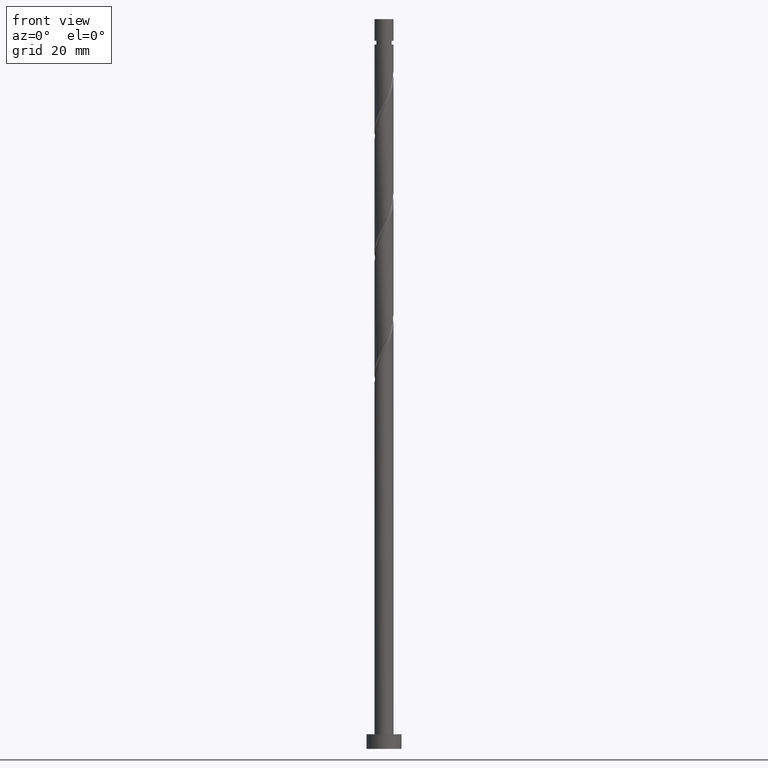
[diagram: clean part render]
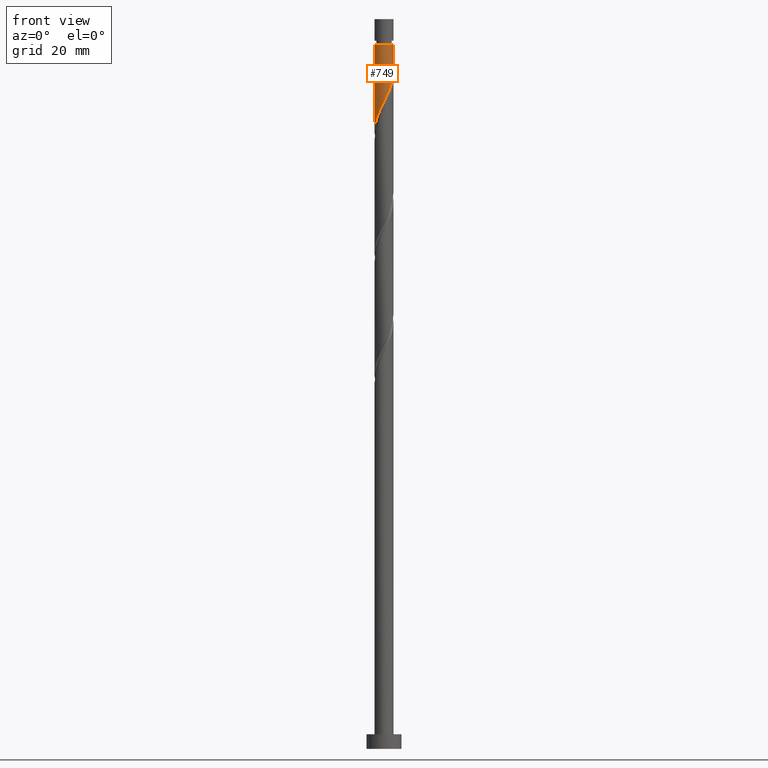
[diagram: same view with one face highlighted and labeled with its STEP entity id]
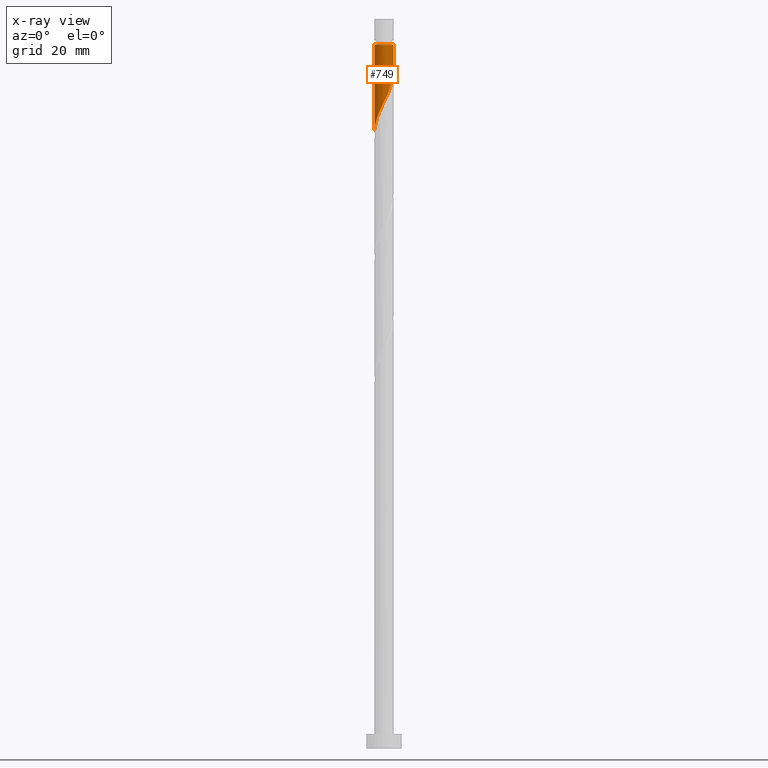
[diagram: x-ray of the same camera — body ghosted, the highlighted face saturated]
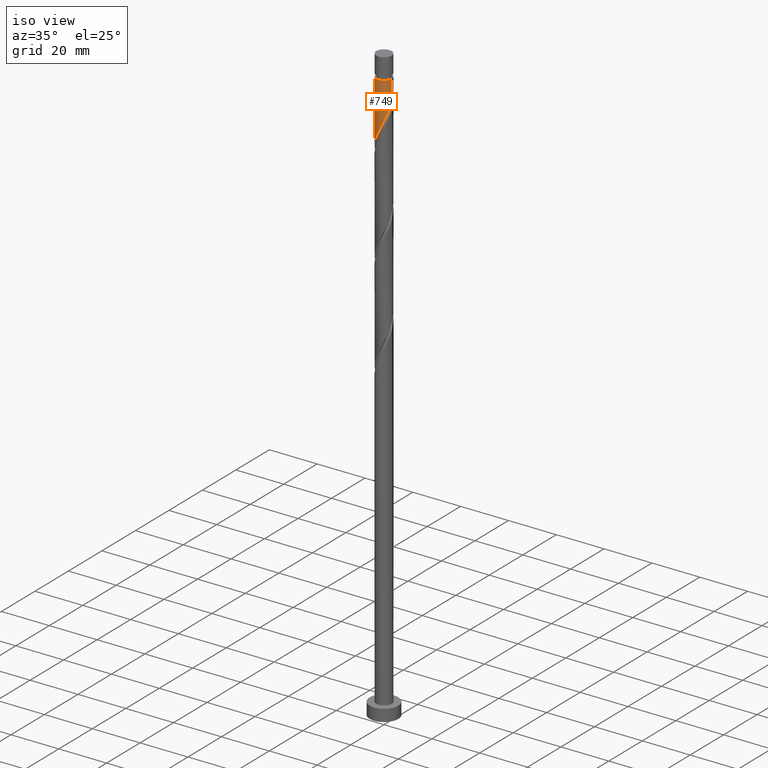
[diagram: same view with one face highlighted and labeled with its STEP entity id]
A machine part, front view. The second image highlights one B-rep face of the part: STEP entity #749.
The next image is the same camera in x-ray: the body ghosted, the highlighted face saturated — about 0% of this face is hidden behind the body in this view.
A second angle (iso view) of the same face is appended — the face is thin or edge-on in the first view.
In plain terms, the highlighted cylindrical surface (edge-blend (fillet) strip) has radius 3.25 mm, axis along (-0, -0, -1).
Its self-contained STEP definition (entity closure, byte-faithful):
#14 = CARTESIAN_POINT ( 'NONE',  ( -3.250000000000000444, 5.099975039850755207E-15, 211.3477605159716290 ) ) ;
#22 =( BOUNDED_CURVE ( )  B_SPLINE_CURVE ( 2, ( #521, #831, #530, #1241, #1383, #1086, #954, #1507, #693, #389, #1806, #1812, #419, #249, #800, #1246, #549, #378, #1079, #1659, #1350, #405, #818, #105, #677, #970, #1223, #1115, #944 ),
 .UNSPECIFIED., .F., .T. ) 
 B_SPLINE_CURVE_WITH_KNOTS ( ( 3, 2, 2, 2, 2, 2, 2, 2, 2, 2, 2, 2, 2, 2, 3 ),
 ( 0.3045271625973832164, 0.3076923076923077094, 0.3173076923076922906, 0.3269230769230769273, 0.3365384615384615641, 0.3461538461538461453, 0.3557692307692307820, 0.3653846153846153633, 0.3750000000000000000, 0.3846153846153846367, 0.3942307692307692180, 0.4038461538461538547, 0.4134615384615384359, 0.4230769230769230727, 0.4295271625973831608 ),
 .UNSPECIFIED. ) 
 CURVE ( )  GEOMETRIC_REPRESENTATION_ITEM ( )  RATIONAL_B_SPLINE_CURVE ( ( 0.9061636035682838486, 0.9069090390690724979, 0.9090909090909291557, 0.9024626128164325856, 0.9090909090909291557, 0.9024626128164325856, 0.9090909090909291557, 0.9024626128164325856, 0.9090909090909291557, 0.9024626128164325856, 0.9090909090909291557, 0.9024626128164325856, 0.9090909090909291557, 0.9024626128164325856, 0.9090909090909291557, 0.9024626128164325856, 0.9090909090909291557, 0.9024626128164325856, 0.9090909090909291557, 0.9024626128164325856, 0.9090909090909291557, 0.9024626128164325856, 0.9090909090909291557, 0.9024626128164325856, 0.9090909090909291557, 0.9024626128164325856, 0.9090909090909291557, 0.9046444828382892434, 0.9061636035682838486 ) ) 
 REPRESENTATION_ITEM ( '' )  );
#64 = ORIENTED_EDGE ( 'NONE', *, *, #1703, .F. ) ;
#81 = EDGE_CURVE ( 'NONE', #933, #1470, #22, .T. ) ;
#105 = CARTESIAN_POINT ( 'NONE',  ( -2.833535561689598303, -1.639909237082070037, 214.8275309477720612 ) ) ;
#127 = DIRECTION ( 'NONE',  ( -1.000000000000000000, 0.000000000000000000, 0.000000000000000000 ) ) ;
#150 = EDGE_LOOP ( 'NONE', ( #64, #223, #504, #1832 ) ) ;
#223 = ORIENTED_EDGE ( 'NONE', *, *, #1363, .T. ) ;
#249 = CARTESIAN_POINT ( 'NONE',  ( 0.5285562154176340899, -3.230921604182013240, 222.8403514605925579 ) ) ;
#280 = FACE_OUTER_BOUND ( 'NONE', #150, .T. ) ;
#378 = CARTESIAN_POINT ( 'NONE',  ( -1.033470850682206121, -3.106471323868430723, 219.6352232554643251 ) ) ;
#389 = CARTESIAN_POINT ( 'NONE',  ( 1.969497422358206684, -2.615206681803766031, 226.0454796657207339 ) ) ;
#405 = CARTESIAN_POINT ( 'NONE',  ( -2.358742199564649145, -2.270365900294399886, 216.4300950503361491 ) ) ;
#419 = CARTESIAN_POINT ( 'NONE',  ( 0.9074818488964547791, -3.120733358350800568, 223.6416335118746304 ) ) ;
#464 = LINE ( 'NONE', #1802, #1435 ) ;
#485 = LINE ( 'NONE', #1330, #743 ) ;
#504 = ORIENTED_EDGE ( 'NONE', *, *, #1777, .T. ) ;
#521 = CARTESIAN_POINT ( 'NONE',  ( 3.249999999999999556, 2.557465489192020800E-15, 232.1810938493049719 ) ) ;
#530 = CARTESIAN_POINT ( 'NONE',  ( 3.239733877669281448, -0.2581170313674841510, 231.6544540246951271 ) ) ;
#549 = CARTESIAN_POINT ( 'NONE',  ( -0.6467418341193054143, -3.184999999999998721, 220.4365053067464260 ) ) ;
#677 = CARTESIAN_POINT ( 'NONE',  ( -2.988594849070721704, -1.277028123460070885, 214.0262488964900456 ) ) ;
#693 = CARTESIAN_POINT ( 'NONE',  ( 2.253812376671868289, -2.341544313217390094, 226.8467617170028348 ) ) ;
#715 = VERTEX_POINT ( 'NONE', #1531 ) ;
#743 = VECTOR ( 'NONE', #1032, 1000.000000000000000 ) ;
#749 = ADVANCED_FACE ( 'NONE', ( #280 ), #837, .T. ) ;
#800 = CARTESIAN_POINT ( 'NONE',  ( 0.1342716989306140807, -3.247225140156789536, 222.0390694093104571 ) ) ;
#818 = CARTESIAN_POINT ( 'NONE',  ( -2.596138880627123946, -1.955137568688234628, 215.6288129990541051 ) ) ;
#831 = CARTESIAN_POINT ( 'NONE',  ( 3.250000000000000000, -0.1292626735944972793, 231.9169229336719980 ) ) ;
#837 = CYLINDRICAL_SURFACE ( 'NONE', #1701, 3.250000000000000444 ) ;
#857 = CARTESIAN_POINT ( 'NONE',  ( 0.000000000000000000, 0.000000000000000000, 250.0000000000000000 ) ) ;
#891 = DIRECTION ( 'NONE',  ( -0.000000000000000000, -0.000000000000000000, -1.000000000000000000 ) ) ;
#933 = VERTEX_POINT ( 'NONE', #1067 ) ;
#944 = CARTESIAN_POINT ( 'NONE',  ( -3.250000000000000444, 5.099975039850754418E-15, 211.3477605159716290 ) ) ;
#954 = CARTESIAN_POINT ( 'NONE',  ( 2.748688917919486663, -1.734130684956182833, 228.4493258195668943 ) ) ;
#970 = CARTESIAN_POINT ( 'NONE',  ( -3.143654136451845105, -0.9141470098380720666, 213.2249668452079732 ) ) ;
#1022 = DIRECTION ( 'NONE',  ( -1.000000000000000000, 0.000000000000000000, 0.000000000000000000 ) ) ;
#1032 = DIRECTION ( 'NONE',  ( -0.000000000000000000, -0.000000000000000000, -1.000000000000000000 ) ) ;
#1061 = AXIS2_PLACEMENT_3D ( 'NONE', #1717, #891, #1022 ) ;
#1067 = CARTESIAN_POINT ( 'NONE',  ( 3.249999999999999556, 2.557465489192020405E-15, 232.1810938493049719 ) ) ;
#1079 = CARTESIAN_POINT ( 'NONE',  ( -1.390169082581128368, -2.937674236847159559, 218.8339412041822243 ) ) ;
#1086 = CARTESIAN_POINT ( 'NONE',  ( 2.959250504853443875, -1.400379425281348400, 229.2506078708490520 ) ) ;
#1115 = CARTESIAN_POINT ( 'NONE',  ( -3.250000000000000000, -0.2640834252454016262, 211.8874612533199695 ) ) ;
#1223 = CARTESIAN_POINT ( 'NONE',  ( -3.207364547986603753, -0.5247024455047688551, 212.4236847939258439 ) ) ;
#1241 = CARTESIAN_POINT ( 'NONE',  ( 3.208392795817198717, -0.6514919439064307261, 230.8531719734130832 ) ) ;
#1246 = CARTESIAN_POINT ( 'NONE',  ( -0.2600128175564059285, -3.263528676131567163, 221.2377873580284415 ) ) ;
#1330 = CARTESIAN_POINT ( 'NONE',  ( 3.250000000000000444, 3.980102097228898231E-16, 250.0000000000000000 ) ) ;
#1344 = CARTESIAN_POINT ( 'NONE',  ( -3.249999999999984013, 0.000000000000000000, 241.2698386400797403 ) ) ;
#1350 = CARTESIAN_POINT ( 'NONE',  ( -2.052804757022349325, -2.519621525060144585, 217.2313771016182216 ) ) ;
#1363 = EDGE_CURVE ( 'NONE', #715, #1466, #1607, .T. ) ;
#1383 = CARTESIAN_POINT ( 'NONE',  ( 3.083821650335320630, -1.025935684593891173, 230.0518899221309823 ) ) ;
#1391 = DIRECTION ( 'NONE',  ( -0.000000000000000000, -0.000000000000000000, -1.000000000000000000 ) ) ;
#1435 = VECTOR ( 'NONE', #1513, 1000.000000000000000 ) ;
#1466 = VERTEX_POINT ( 'NONE', #1344 ) ;
#1470 = VERTEX_POINT ( 'NONE', #14 ) ;
#1507 = CARTESIAN_POINT ( 'NONE',  ( 2.538127330985529007, -2.067881944631017266, 227.6480437682848788 ) ) ;
#1513 = DIRECTION ( 'NONE',  ( -0.000000000000000000, -0.000000000000000000, -1.000000000000000000 ) ) ;
#1531 = CARTESIAN_POINT ( 'NONE',  ( 3.249999999999984013, 3.980102097228888371E-16, 241.2698386400797403 ) ) ;
#1607 = CIRCLE ( 'NONE', #1061, 3.249999999999984013 ) ;
#1659 = CARTESIAN_POINT ( 'NONE',  ( -1.746867314480051281, -2.768877149825889727, 218.0326591529002371 ) ) ;
#1701 = AXIS2_PLACEMENT_3D ( 'NONE', #857, #1391, #127 ) ;
#1703 = EDGE_CURVE ( 'NONE', #715, #933, #485, .T. ) ;
#1717 = CARTESIAN_POINT ( 'NONE',  ( 0.000000000000000000, 0.000000000000000000, 241.2698386400797403 ) ) ;
#1777 = EDGE_CURVE ( 'NONE', #1466, #1470, #464, .T. ) ;
#1802 = CARTESIAN_POINT ( 'NONE',  ( -3.250000000000000444, 0.000000000000000000, 250.0000000000000000 ) ) ;
#1806 = CARTESIAN_POINT ( 'NONE',  ( 1.627952452366740133, -2.812875897161678296, 225.2441976144387183 ) ) ;
#1812 = CARTESIAN_POINT ( 'NONE',  ( 1.286407482375274247, -3.010545112519590116, 224.4429155631566459 ) ) ;
#1832 = ORIENTED_EDGE ( 'NONE', *, *, #81, .F. ) ;